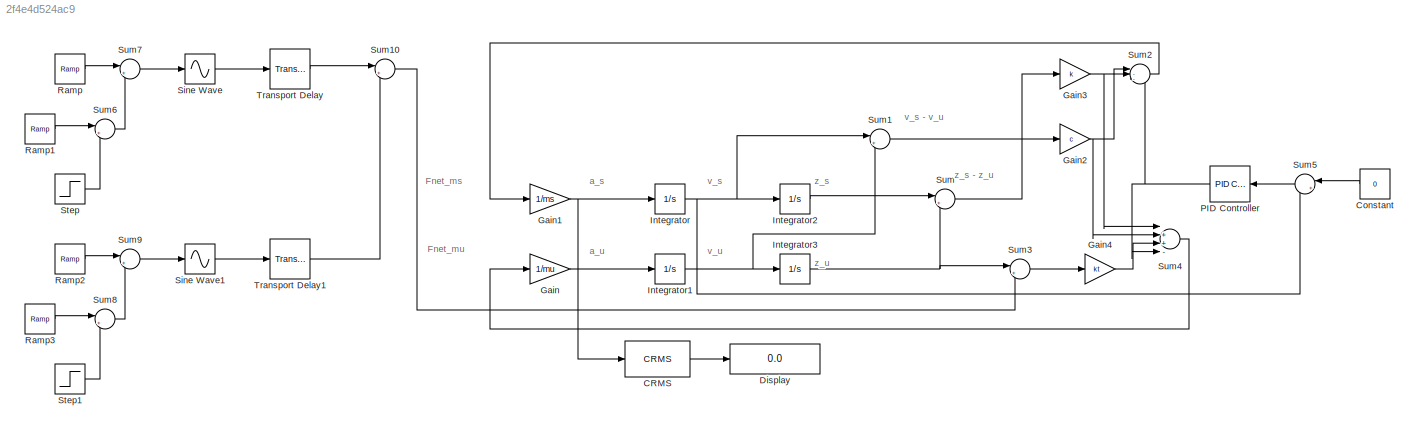
MODEL slx_2f4e4d524ac9
KIND library
CONFIG AbsTol = auto
CONFIG EnableMultiTasking = off
CONFIG FixedStep = auto
CONFIG MaxStep = auto
CONFIG MinStep = auto
CONFIG RelTol = 1e-3
CONFIG SampleTimeConstraint = Unconstrained
CONFIG Solver = VariableStepAuto
CONFIG SolverName = VariableStepAuto
CONFIG StartTime = 0.0
CONFIG StopTime = 10.0
BLOCK [Reference] CRMS  REF=sdolib/RMS Blocks/CRMS
  Ports = [1, 1]
  SourceBlock = sdolib/RMS Blocks/CRMS
  SourceProductBaseCode = SO
  SourceProductName = Simulink Design Optimization
  SourceType = Continuous RMS Value Block
BLOCK [Constant] Constant
  Value = 0
BLOCK [Display] Display
  Decimation = 1
  Ports = [1]
BLOCK [Gain] Gain
  Gain = 1/mu
  OutDataTypeStr = Inherit: Inherit via internal rule
  ParamDataTypeStr = Inherit: Inherit via internal rule
  SaturateOnIntegerOverflow = off
BLOCK [Gain] Gain1
  Gain = 1/ms
  OutDataTypeStr = Inherit: Inherit via internal rule
  ParamDataTypeStr = Inherit: Inherit via internal rule
  SaturateOnIntegerOverflow = off
BLOCK [Gain] Gain2
  Gain = c
  OutDataTypeStr = Inherit: Inherit via internal rule
  ParamDataTypeStr = Inherit: Inherit via internal rule
  SaturateOnIntegerOverflow = off
BLOCK [Gain] Gain3
  Gain = k
  OutDataTypeStr = Inherit: Inherit via internal rule
  ParamDataTypeStr = Inherit: Inherit via internal rule
  SaturateOnIntegerOverflow = off
BLOCK [Gain] Gain4
  Gain = kt
  OutDataTypeStr = Inherit: Inherit via internal rule
  ParamDataTypeStr = Inherit: Inherit via internal rule
  SaturateOnIntegerOverflow = off
BLOCK [Integrator] Integrator
  Ports = [1, 1]
BLOCK [Integrator] Integrator1
  Ports = [1, 1]
BLOCK [Integrator] Integrator2
  Ports = [1, 1]
BLOCK [Integrator] Integrator3
  Ports = [1, 1]
BLOCK [Reference] PID Controller  REF=simulink/Continuous/PID Controller
  Ports = [1, 1]
  SourceBlock = simulink/Continuous/PID Controller
  SourceProductBaseCode = SL
  SourceProductName = Simulink
  SourceType = PID 1dof
BLOCK [Reference] Ramp  REF=simulink/Sources/Ramp
  Ports = [0, 1]
  SourceBlock = simulink/Sources/Ramp
  SourceProductBaseCode = SL
  SourceProductName = Simulink
  SourceType = Ramp
BLOCK [Reference] Ramp1  REF=simulink/Sources/Ramp
  Ports = [0, 1]
  SourceBlock = simulink/Sources/Ramp
  SourceProductBaseCode = SL
  SourceProductName = Simulink
  SourceType = Ramp
BLOCK [Reference] Ramp2  REF=simulink/Sources/Ramp
  Ports = [0, 1]
  SourceBlock = simulink/Sources/Ramp
  SourceProductBaseCode = SL
  SourceProductName = Simulink
  SourceType = Ramp
BLOCK [Reference] Ramp3  REF=simulink/Sources/Ramp
  Ports = [0, 1]
  SourceBlock = simulink/Sources/Ramp
  SourceProductBaseCode = SL
  SourceProductName = Simulink
  SourceType = Ramp
BLOCK [Sin] Sine Wave
  Amplitude = 0.08
  Frequency = 1.7953
  Ports = [1, 1]
  SampleTime = 0
  TimeSource = Use external signal
BLOCK [Sin] Sine Wave1
  Amplitude = 0.05
  Frequency = 1.7953
  Ports = [1, 1]
  SampleTime = 0
  TimeSource = Use external signal
BLOCK [Step] Step
  After = 1.75
  SampleTime = 0
  Time = 1.75
BLOCK [Step] Step1
  After = 1.75
  SampleTime = 0
  Time = 1.75
BLOCK [Sum] Sum
  IconShape = round
  InputSameDT = off
  Inputs = |+-
  OutDataTypeStr = Inherit: Inherit via internal rule
  Ports = [2, 1]
  SaturateOnIntegerOverflow = off
BLOCK [Sum] Sum1
  IconShape = round
  InputSameDT = off
  Inputs = |+-
  OutDataTypeStr = Inherit: Inherit via internal rule
  Ports = [2, 1]
  SaturateOnIntegerOverflow = off
BLOCK [Sum] Sum10
  IconShape = round
  InputSameDT = off
  Inputs = |++
  OutDataTypeStr = Inherit: Inherit via internal rule
  Ports = [2, 1]
  SaturateOnIntegerOverflow = off
BLOCK [Sum] Sum2
  IconShape = round
  InputSameDT = off
  Inputs = |--+
  OutDataTypeStr = Inherit: Inherit via internal rule
  Ports = [3, 1]
  SaturateOnIntegerOverflow = off
BLOCK [Sum] Sum3
  IconShape = round
  InputSameDT = off
  Inputs = |+-
  OutDataTypeStr = Inherit: Inherit via internal rule
  Ports = [2, 1]
  SaturateOnIntegerOverflow = off
BLOCK [Sum] Sum4
  InputSameDT = off
  Inputs = |++--
  OutDataTypeStr = Inherit: Inherit via internal rule
  Ports = [4, 1]
  SaturateOnIntegerOverflow = off
BLOCK [Sum] Sum5
  IconShape = round
  InputSameDT = off
  Inputs = |+-
  OutDataTypeStr = Inherit: Inherit via internal rule
  Ports = [2, 1]
  SaturateOnIntegerOverflow = off
BLOCK [Sum] Sum6
  IconShape = round
  InputSameDT = off
  Inputs = |++
  OutDataTypeStr = Inherit: Inherit via internal rule
  Ports = [2, 1]
  SaturateOnIntegerOverflow = off
BLOCK [Sum] Sum7
  IconShape = round
  InputSameDT = off
  Inputs = |+-
  OutDataTypeStr = Inherit: Inherit via internal rule
  Ports = [2, 1]
  SaturateOnIntegerOverflow = off
BLOCK [Sum] Sum8
  IconShape = round
  InputSameDT = off
  Inputs = |++
  OutDataTypeStr = Inherit: Inherit via internal rule
  Ports = [2, 1]
  SaturateOnIntegerOverflow = off
BLOCK [Sum] Sum9
  IconShape = round
  InputSameDT = off
  Inputs = |+-
  OutDataTypeStr = Inherit: Inherit via internal rule
  Ports = [2, 1]
  SaturateOnIntegerOverflow = off
BLOCK [TransportDelay] Transport Delay
  DelayTime = 10
  Ports = [1, 1]
BLOCK [TransportDelay] Transport Delay1
  DelayTime = 30
  Ports = [1, 1]
ANNOTATION (root): Fnet_ms
ANNOTATION (root): Fnet_mu
ANNOTATION (root): a_s
ANNOTATION (root): a_u
ANNOTATION (root): v_s
ANNOTATION (root): v_s - v_u
ANNOTATION (root): v_u
ANNOTATION (root): z_s
ANNOTATION (root): z_s - z_u
ANNOTATION (root): z_u
LINE CRMS:1 -> Display:1
LINE Constant:1 -> Sum5:1
NET Gain1:1 -> CRMS:1, Integrator:1
NET Gain2:1 -> Sum2:2, Sum4:2
NET Gain3:1 -> Sum2:1, Sum4:1
LINE Gain4:1 -> Sum4:3
LINE Gain:1 -> Integrator1:1
NET Integrator1:1 -> Integrator3:1, Sum1:2
LINE Integrator2:1 -> Sum:1
NET Integrator3:1 -> Sum3:1, Sum:2
NET Integrator:1 -> Integrator2:1, Sum1:1, Sum5:2
NET PID Controller:1 -> Sum2:3, Sum4:4
LINE Ramp1:1 -> Sum6:1
LINE Ramp2:1 -> Sum9:1
LINE Ramp3:1 -> Sum8:1
LINE Ramp:1 -> Sum7:1
LINE Sine Wave1:1 -> Transport Delay1:1
LINE Sine Wave:1 -> Transport Delay:1
LINE Step1:1 -> Sum8:2
LINE Step:1 -> Sum6:2
LINE Sum10:1 -> Sum3:2
LINE Sum1:1 -> Gain2:1
LINE Sum2:1 -> Gain1:1
LINE Sum3:1 -> Gain4:1
LINE Sum4:1 -> Gain:1
LINE Sum5:1 -> PID Controller:1
LINE Sum6:1 -> Sum7:2
LINE Sum7:1 -> Sine Wave:1
LINE Sum8:1 -> Sum9:2
LINE Sum9:1 -> Sine Wave1:1
LINE Sum:1 -> Gain3:1
LINE Transport Delay1:1 -> Sum10:2
LINE Transport Delay:1 -> Sum10:1
note: NET lines group one-source signal fan-out (src -> all destinations, sorted); 1:1 wires keep LINE
